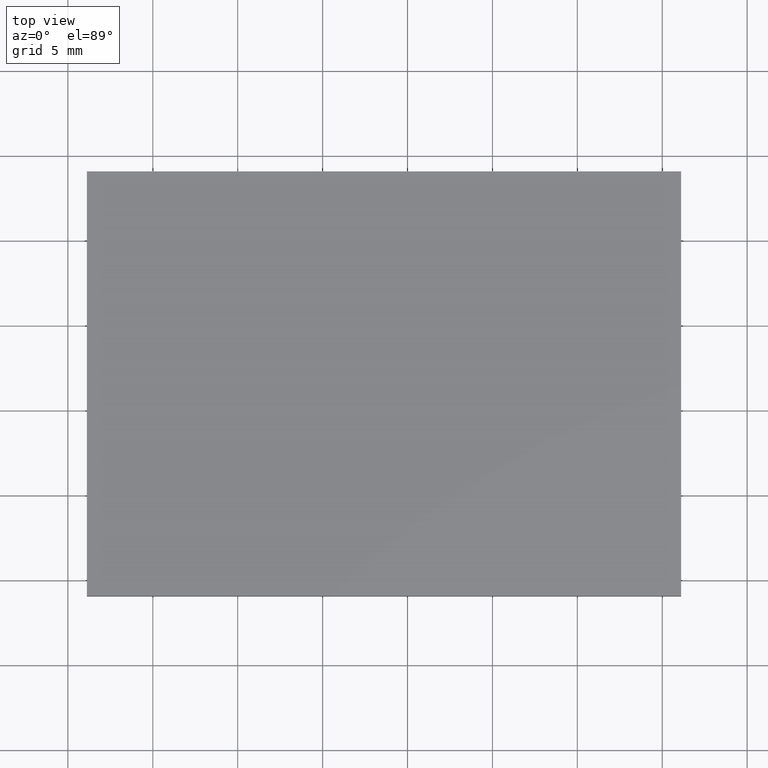
[diagram: clean part render]
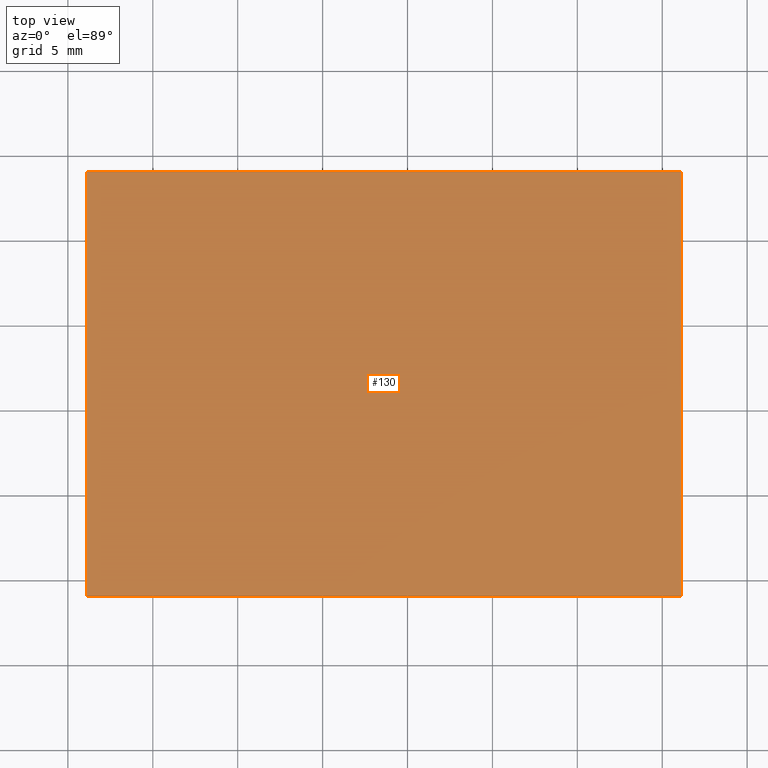
[diagram: same view with one face highlighted and labeled with its STEP entity id]
A machine part, top view. The second image highlights one B-rep face of the part: STEP entity #130.
In plain terms, the highlighted planar face has unit normal (0, 0, 1).
Its self-contained STEP definition (entity closure, byte-faithful):
#2 = ORIENTED_EDGE ( 'NONE', *, *, #110, .T. ) ;
#15 = ORIENTED_EDGE ( 'NONE', *, *, #66, .T. ) ;
#18 = LINE ( 'NONE', #177, #166 ) ;
#20 = CARTESIAN_POINT ( 'NONE',  ( 91.11498394228368600, 74.06324183452657900, 2.299999999999999800 ) ) ;
#22 = ORIENTED_EDGE ( 'NONE', *, *, #179, .T. ) ;
#26 = VECTOR ( 'NONE', #129, 1000.000000000000000 ) ;
#31 = LINE ( 'NONE', #20, #26 ) ;
#39 = CARTESIAN_POINT ( 'NONE',  ( 0.0000000000000000000, 0.0000000000000000000, 2.299999999999999800 ) ) ;
#41 = CARTESIAN_POINT ( 'NONE',  ( 91.11498394228368600, 49.06324183452660000, 2.299999999999999800 ) ) ;
#45 = ORIENTED_EDGE ( 'NONE', *, *, #85, .T. ) ;
#46 = LINE ( 'NONE', #145, #68 ) ;
#49 = CARTESIAN_POINT ( 'NONE',  ( 91.11498394228368600, 49.06324183452660000, 2.299999999999999800 ) ) ;
#51 = DIRECTION ( 'NONE',  ( 1.000000000000000000, -1.982541115402065800E-016, 0.0000000000000000000 ) ) ;
#53 = VECTOR ( 'NONE', #51, 1000.000000000000000 ) ;
#66 = EDGE_CURVE ( 'NONE', #116, #125, #18, .T. ) ;
#68 = VECTOR ( 'NONE', #146, 1000.000000000000000 ) ;
#69 = CARTESIAN_POINT ( 'NONE',  ( 126.1149839422836900, 49.06324183452659300, 2.299999999999999800 ) ) ;
#84 = CARTESIAN_POINT ( 'NONE',  ( 91.11498394228368600, 74.06324183452657900, 2.299999999999999800 ) ) ;
#85 = EDGE_CURVE ( 'NONE', #172, #115, #31, .T. ) ;
#86 = LINE ( 'NONE', #41, #53 ) ;
#90 = FACE_OUTER_BOUND ( 'NONE', #175, .T. ) ;
#107 = DIRECTION ( 'NONE',  ( 1.110223024625156700E-015, 1.000000000000000000, -0.0000000000000000000 ) ) ;
#110 = EDGE_CURVE ( 'NONE', #125, #172, #46, .T. ) ;
#115 = VERTEX_POINT ( 'NONE', #49 ) ;
#116 = VERTEX_POINT ( 'NONE', #69 ) ;
#117 = PLANE ( 'NONE',  #173 ) ;
#125 = VERTEX_POINT ( 'NONE', #168 ) ;
#129 = DIRECTION ( 'NONE',  ( 0.0000000000000000000, -1.000000000000000000, 0.0000000000000000000 ) ) ;
#130 = ADVANCED_FACE ( 'NONE', ( #90 ), #117, .T. ) ;
#135 = DIRECTION ( 'NONE',  ( 0.0000000000000000000, 0.0000000000000000000, 1.000000000000000000 ) ) ;
#138 = DIRECTION ( 'NONE',  ( 1.000000000000000000, 0.0000000000000000000, -0.0000000000000000000 ) ) ;
#145 = CARTESIAN_POINT ( 'NONE',  ( 91.11498394228368600, 74.06324183452657900, 2.299999999999999800 ) ) ;
#146 = DIRECTION ( 'NONE',  ( -1.000000000000000000, -3.965082230804128700E-016, -0.0000000000000000000 ) ) ;
#166 = VECTOR ( 'NONE', #107, 1000.000000000000000 ) ;
#168 = CARTESIAN_POINT ( 'NONE',  ( 126.1149839422837100, 74.06324183452659300, 2.299999999999999800 ) ) ;
#172 = VERTEX_POINT ( 'NONE', #84 ) ;
#173 = AXIS2_PLACEMENT_3D ( 'NONE', #39, #135, #138 ) ;
#175 = EDGE_LOOP ( 'NONE', ( #45, #22, #15, #2 ) ) ;
#177 = CARTESIAN_POINT ( 'NONE',  ( 126.1149839422837100, 74.06324183452659300, 2.299999999999999800 ) ) ;
#179 = EDGE_CURVE ( 'NONE', #115, #116, #86, .T. ) ;